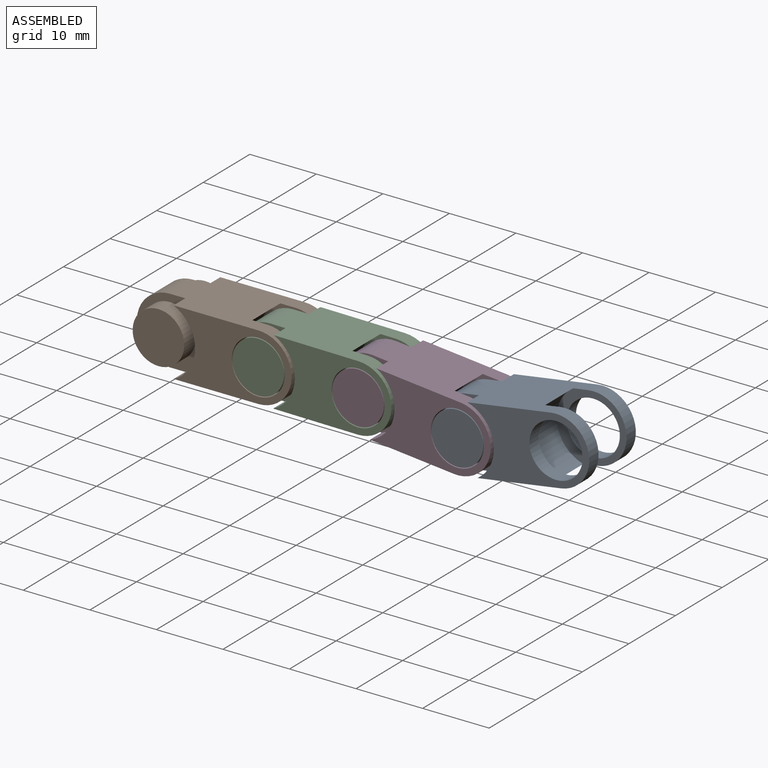
[diagram: assembled view]
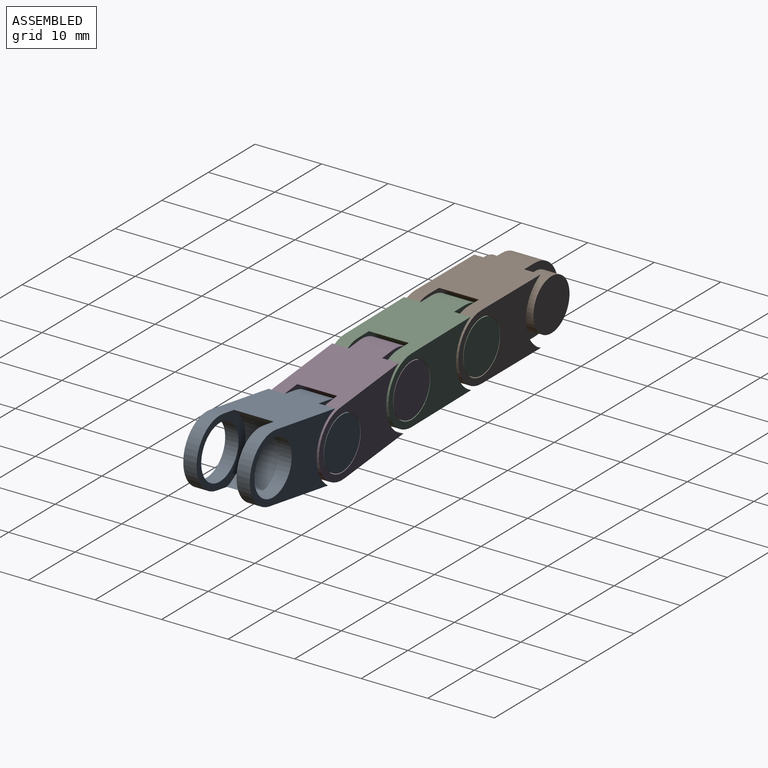
[diagram: assembled view, second angle]
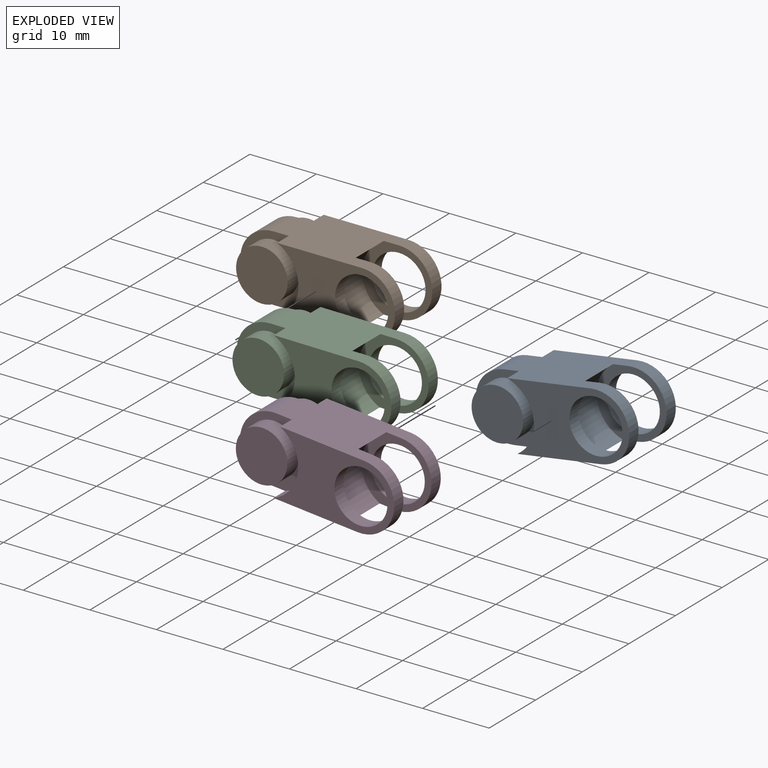
[diagram: exploded view]
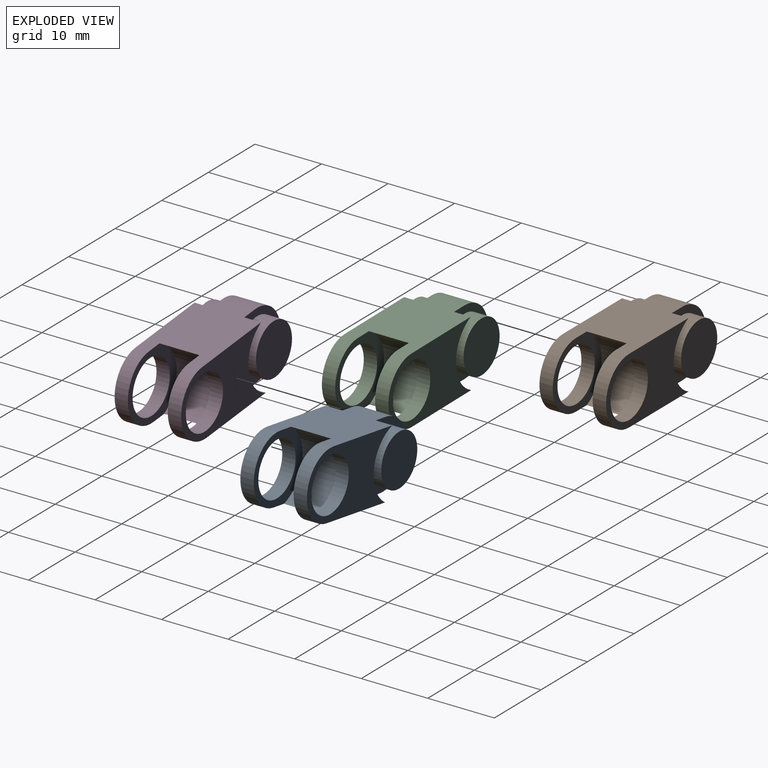
[diagram: exploded view, second angle]
ASSEMBLY  parts=4 mates=3
PART A: 20 faces, bbox 25x10x10 mm
  f0: plane 17.71x10mm, normal (0,-1,0), area 93mm2, adj f1,f2,f9,f10,f16
  f1: plane 15x10mm, normal (0,0,1), area 124.8mm2, adj f0,f4,f5,f6,f7,f8,f10,f11
  f2: plane 15x10mm, normal (0,0,-1), area 124.8mm2, adj f0,f4,f5,f6,f7,f8,f10,f11
  f3: cylinder r=4mm len=8mm, axis (0,-1,0), area 50.3mm2, adj f5,f8
  f4: cylinder r=5mm len=10mm, axis (0,-1,0), area 31.4mm2, adj f1,f2,f5,f8
  f5: plane 17.71x10mm, normal (0,1,0), area 93mm2, adj f1,f2,f3,f4,f6
  f6: cylinder r=5.5mm len=10mm, axis (0,-1,0), area 31.4mm2, adj f1,f2,f5,f15
  f7: cylinder r=5.5mm len=10mm, axis (0,-1,0), area 75.3mm2, adj f1,f2,f8,f11
  f8: plane 10.5x10mm, normal (0,-1,0), area 35mm2, adj f1,f2,f3,f4,f7
  f9: cylinder r=4mm len=8mm, axis (0,-1,0), area 50.3mm2, adj f0,f11
  f10: cylinder r=5mm len=10mm, axis (0,-1,0), area 31.4mm2, adj f0,f1,f2,f11
  f11: plane 10.5x10mm, normal (0,1,0), area 35mm2, adj f1,f2,f7,f9,f10
  f12: cylinder r=3.88mm len=7.75mm, axis (0,-1,0), area 60.9mm2, adj f13,f15
  f13: plane 7.75x7.75mm, normal (0,1,0), area 47.2mm2, adj f12
  f14: cylinder r=5mm len=10mm, axis (0,-1,0), area 78.5mm2, adj f1,f2,f15,f18
  f15: plane 10.5x10mm, normal (0,1,0), area 38.1mm2, adj f1,f2,f6,f12,f14
  f16: cylinder r=5.5mm len=10mm, axis (0,-1,0), area 31.4mm2, adj f0,f1,f2,f18
  f17: cylinder r=3.88mm len=7.75mm, axis (0,-1,0), area 60.9mm2, adj f18,f19
  f18: plane 10.5x10mm, normal (0,-1,0), area 38.1mm2, adj f1,f2,f14,f16,f17
  f19: plane 7.75x7.75mm, normal (0,-1,0), area 47.2mm2, adj f17
PART B: same geometry as A
PART C: same geometry as A
PART D: same geometry as A
PLACE A rot(axis=(0,-1,0),8.8deg) t=(44.04,1.23,-2.25)mm
PLACE B t=(-1.57,1.23,-1.8)mm fixed
PLACE C rot(axis=(0,1,0),0.6deg) t=(13.38,1.23,-1.88)mm
PLACE D rot(axis=(0,1,0),5.7deg) t=(27.9,1.23,-2.69)mm
MATE revolute C.f6 <-> B.f3  axis (0,-1,0) through (5.93,-3.77,3.2)mm
MATE revolute A.f6 <-> D.f3  axis (0,-1,0) through (35.86,-3.77,1.54)mm
MATE revolute D.f6 <-> C.f3  axis (0,-1,0) through (20.93,-3.77,3.03)mm
